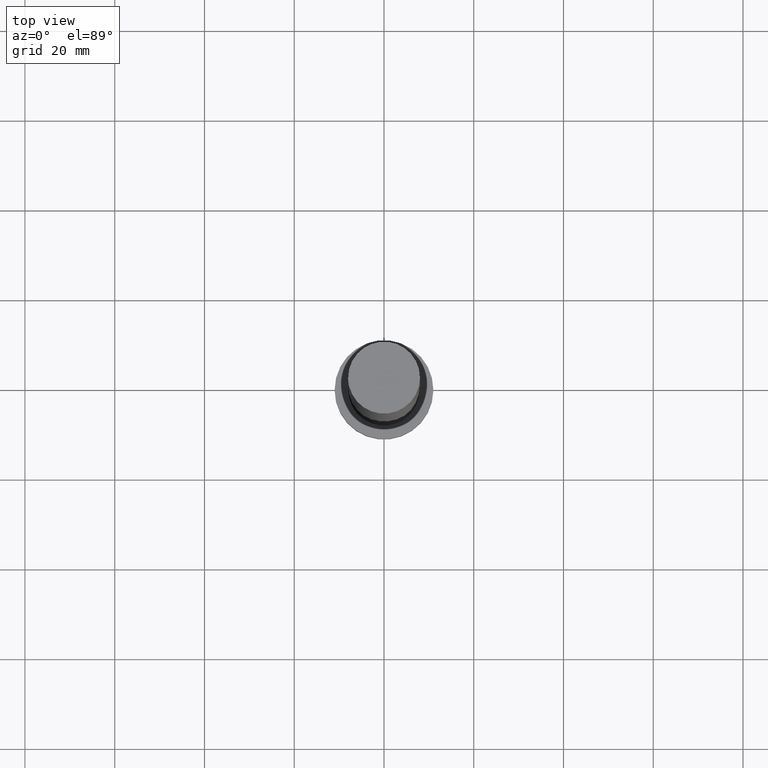
[diagram: clean part render]
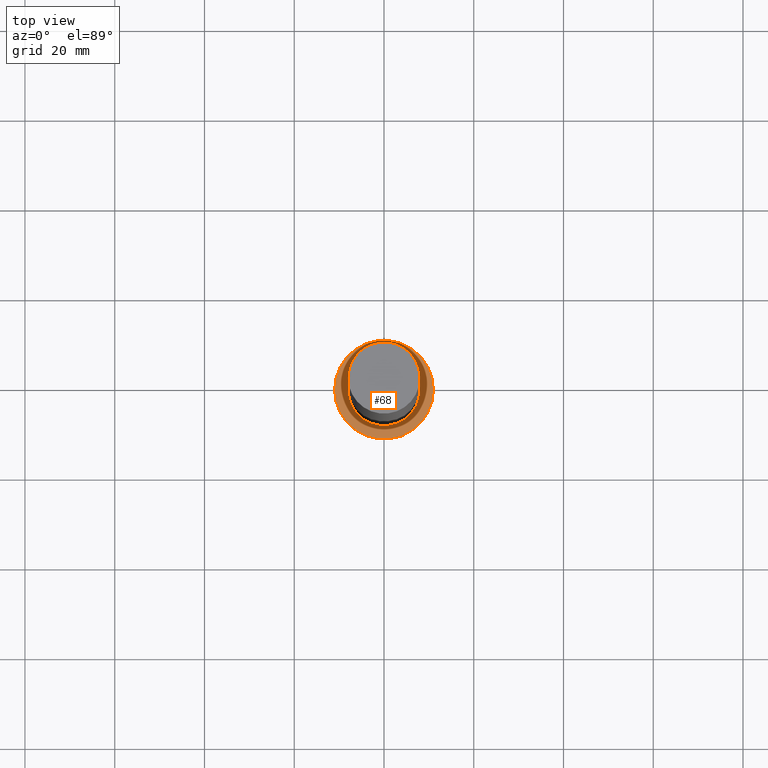
[diagram: same view with one face highlighted and labeled with its STEP entity id]
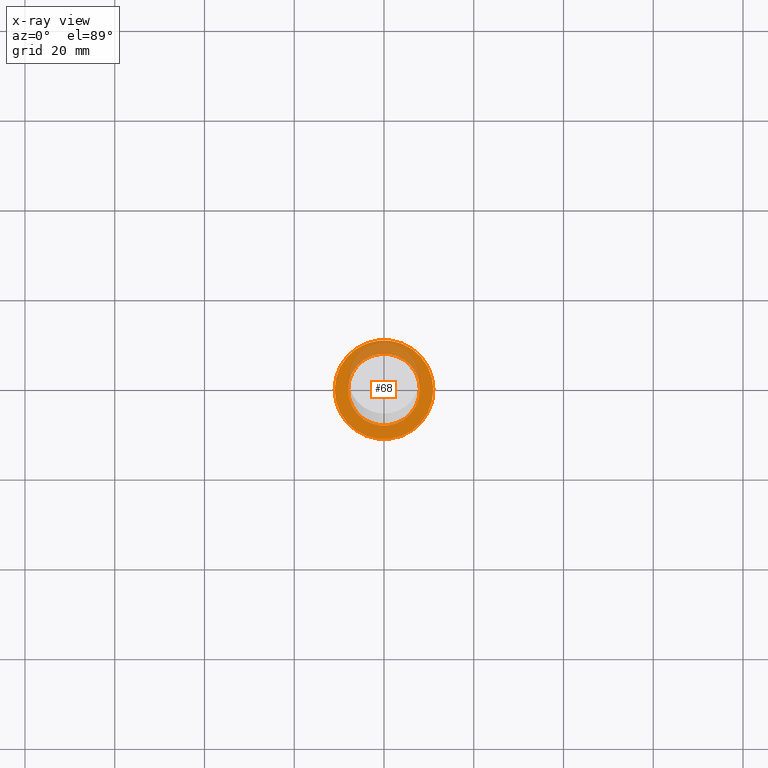
[diagram: x-ray of the same camera — body ghosted, the highlighted face saturated]
A machine part, top view. The second image highlights one B-rep face of the part: STEP entity #68.
The next image is the same camera in x-ray: the body ghosted, the highlighted face saturated — about 24% of this face is hidden behind the body in this view.
In plain terms, the highlighted planar face has unit normal (0, 0, 1).
Its self-contained STEP definition (entity closure, byte-faithful):
#6 = FACE_BOUND ( 'NONE', #107, .T. ) ;
#9 = ORIENTED_EDGE ( 'NONE', *, *, #139, .F. ) ;
#21 = VERTEX_POINT ( 'NONE', #93 ) ;
#34 = DIRECTION ( 'NONE',  ( 1.000000000000000000, 0.000000000000000000, 0.000000000000000000 ) ) ;
#35 = EDGE_CURVE ( 'NONE', #199, #21, #222, .T. ) ;
#40 = EDGE_CURVE ( 'NONE', #21, #199, #245, .T. ) ;
#41 = AXIS2_PLACEMENT_3D ( 'NONE', #188, #174, #134 ) ;
#44 = AXIS2_PLACEMENT_3D ( 'NONE', #108, #229, #212 ) ;
#45 = CIRCLE ( 'NONE', #104, 8.000000000000000000 ) ;
#51 = ORIENTED_EDGE ( 'NONE', *, *, #35, .T. ) ;
#57 = DIRECTION ( 'NONE',  ( 0.000000000000000000, 0.000000000000000000, 1.000000000000000000 ) ) ;
#65 = VERTEX_POINT ( 'NONE', #207 ) ;
#68 = ADVANCED_FACE ( 'NONE', ( #6, #185 ), #248, .T. ) ;
#93 = CARTESIAN_POINT ( 'NONE',  ( 11.00000000000000000, 1.347111479062088405E-15, 7.000000000000000000 ) ) ;
#104 = AXIS2_PLACEMENT_3D ( 'NONE', #234, #57, #118 ) ;
#105 = EDGE_LOOP ( 'NONE', ( #51, #230 ) ) ;
#107 = EDGE_LOOP ( 'NONE', ( #9, #112 ) ) ;
#108 = CARTESIAN_POINT ( 'NONE',  ( 0.000000000000000000, 0.000000000000000000, 7.000000000000000000 ) ) ;
#112 = ORIENTED_EDGE ( 'NONE', *, *, #239, .F. ) ;
#115 = VERTEX_POINT ( 'NONE', #176 ) ;
#118 = DIRECTION ( 'NONE',  ( 1.000000000000000000, 0.000000000000000000, 0.000000000000000000 ) ) ;
#134 = DIRECTION ( 'NONE',  ( 1.000000000000000000, 0.000000000000000000, 0.000000000000000000 ) ) ;
#139 = EDGE_CURVE ( 'NONE', #65, #115, #45, .T. ) ;
#151 = DIRECTION ( 'NONE',  ( 0.000000000000000000, 0.000000000000000000, 1.000000000000000000 ) ) ;
#152 = AXIS2_PLACEMENT_3D ( 'NONE', #223, #151, #34 ) ;
#159 = CIRCLE ( 'NONE', #41, 8.000000000000000000 ) ;
#168 = DIRECTION ( 'NONE',  ( 0.000000000000000000, 0.000000000000000000, 1.000000000000000000 ) ) ;
#174 = DIRECTION ( 'NONE',  ( 0.000000000000000000, 0.000000000000000000, 1.000000000000000000 ) ) ;
#176 = CARTESIAN_POINT ( 'NONE',  ( 8.000000000000000000, 9.797174393178825657E-16, 7.000000000000000000 ) ) ;
#184 = DIRECTION ( 'NONE',  ( 1.000000000000000000, 0.000000000000000000, 0.000000000000000000 ) ) ;
#185 = FACE_OUTER_BOUND ( 'NONE', #105, .T. ) ;
#188 = CARTESIAN_POINT ( 'NONE',  ( 0.000000000000000000, 0.000000000000000000, 7.000000000000000000 ) ) ;
#189 = CARTESIAN_POINT ( 'NONE',  ( 0.000000000000000000, 0.000000000000000000, 7.000000000000000000 ) ) ;
#199 = VERTEX_POINT ( 'NONE', #236 ) ;
#207 = CARTESIAN_POINT ( 'NONE',  ( -8.000000000000000000, 0.000000000000000000, 7.000000000000000000 ) ) ;
#208 = AXIS2_PLACEMENT_3D ( 'NONE', #189, #168, #184 ) ;
#212 = DIRECTION ( 'NONE',  ( 1.000000000000000000, 0.000000000000000000, -0.000000000000000000 ) ) ;
#222 = CIRCLE ( 'NONE', #208, 11.00000000000000000 ) ;
#223 = CARTESIAN_POINT ( 'NONE',  ( 0.000000000000000000, 0.000000000000000000, 7.000000000000000000 ) ) ;
#229 = DIRECTION ( 'NONE',  ( 0.000000000000000000, 0.000000000000000000, 1.000000000000000000 ) ) ;
#230 = ORIENTED_EDGE ( 'NONE', *, *, #40, .T. ) ;
#234 = CARTESIAN_POINT ( 'NONE',  ( 0.000000000000000000, 0.000000000000000000, 7.000000000000000000 ) ) ;
#236 = CARTESIAN_POINT ( 'NONE',  ( -11.00000000000000000, 0.000000000000000000, 7.000000000000000000 ) ) ;
#239 = EDGE_CURVE ( 'NONE', #115, #65, #159, .T. ) ;
#245 = CIRCLE ( 'NONE', #152, 11.00000000000000000 ) ;
#248 = PLANE ( 'NONE',  #44 ) ;